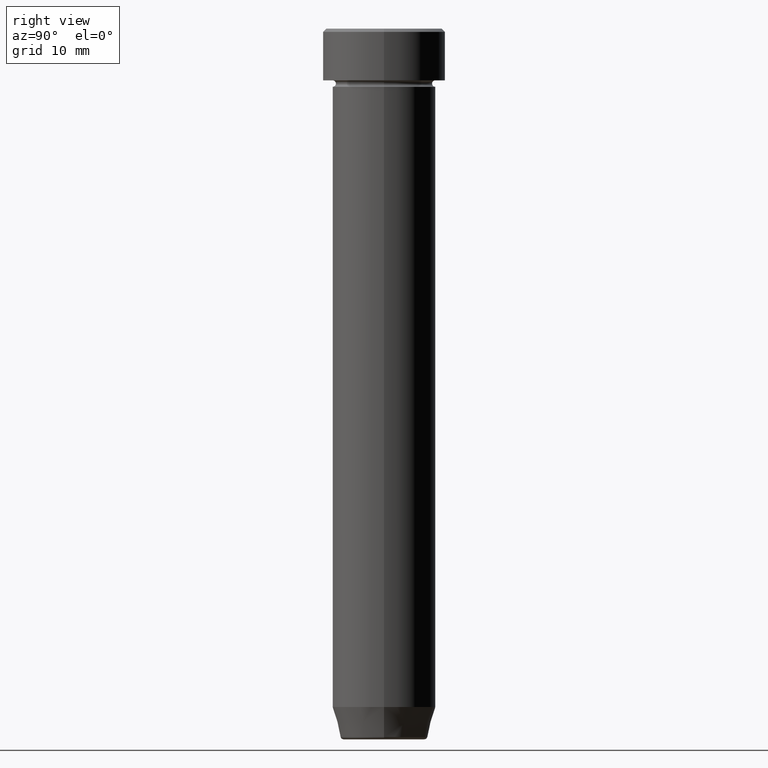
[diagram: clean part render]
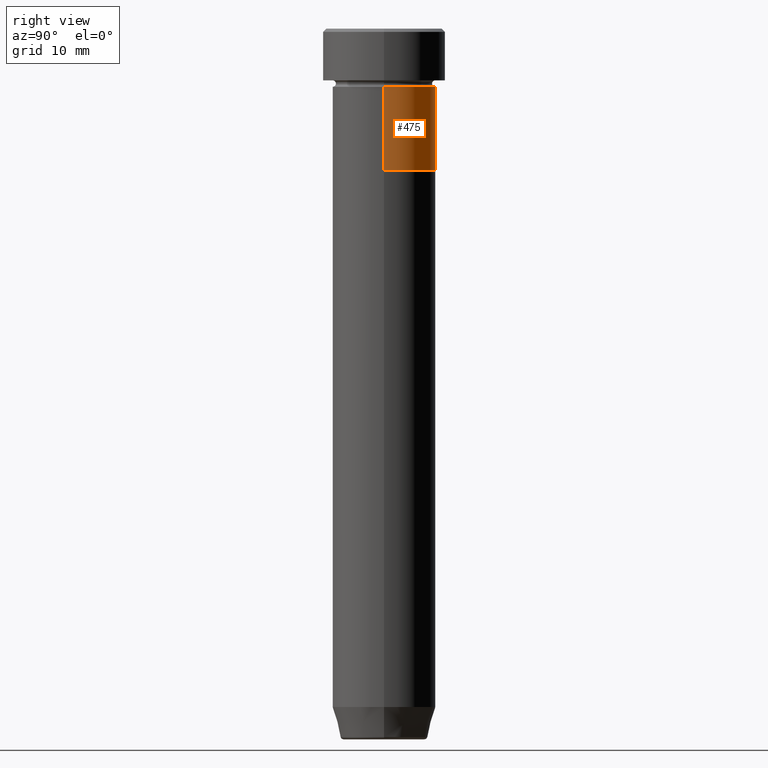
[diagram: same view with one face highlighted and labeled with its STEP entity id]
A machine part, right view. The second image highlights one B-rep face of the part: STEP entity #475.
In plain terms, the highlighted cylindrical surface (partial cylindrical patch) has radius 8 mm, axis along (-0, -0, 1).
Its self-contained STEP definition (entity closure, byte-faithful):
#1 = DIRECTION ( 'NONE',  ( -0.000000000000000000, -0.000000000000000000, 1.000000000000000000 ) ) ;
#11 = FACE_OUTER_BOUND ( 'NONE', #244, .T. ) ;
#13 = DIRECTION ( 'NONE',  ( 1.000000000000000000, 0.000000000000000000, 0.000000000000000000 ) ) ;
#26 = AXIS2_PLACEMENT_3D ( 'NONE', #548, #137, #415 ) ;
#81 = ORIENTED_EDGE ( 'NONE', *, *, #484, .T. ) ;
#89 = CARTESIAN_POINT ( 'NONE',  ( -8.000000000000000000, 9.797174393178825657E-16, -22.00000000000000000 ) ) ;
#131 = EDGE_CURVE ( 'NONE', #173, #558, #537, .T. ) ;
#137 = DIRECTION ( 'NONE',  ( -0.000000000000000000, -0.000000000000000000, 1.000000000000000000 ) ) ;
#173 = VERTEX_POINT ( 'NONE', #589 ) ;
#176 = AXIS2_PLACEMENT_3D ( 'NONE', #461, #1, #511 ) ;
#198 = CARTESIAN_POINT ( 'NONE',  ( 0.000000000000000000, 0.000000000000000000, 0.000000000000000000 ) ) ;
#205 = DIRECTION ( 'NONE',  ( -0.000000000000000000, -0.000000000000000000, 1.000000000000000000 ) ) ;
#213 = LINE ( 'NONE', #386, #467 ) ;
#241 = CIRCLE ( 'NONE', #176, 8.000000000000000000 ) ;
#244 = EDGE_LOOP ( 'NONE', ( #529, #81, #263, #272 ) ) ;
#251 = DIRECTION ( 'NONE',  ( -0.000000000000000000, -0.000000000000000000, 1.000000000000000000 ) ) ;
#263 = ORIENTED_EDGE ( 'NONE', *, *, #273, .F. ) ;
#272 = ORIENTED_EDGE ( 'NONE', *, *, #131, .F. ) ;
#273 = EDGE_CURVE ( 'NONE', #558, #559, #241, .T. ) ;
#324 = EDGE_CURVE ( 'NONE', #173, #400, #378, .T. ) ;
#344 = CARTESIAN_POINT ( 'NONE',  ( 8.000000000000000000, 0.000000000000000000, -9.000000000000001776 ) ) ;
#351 = AXIS2_PLACEMENT_3D ( 'NONE', #198, #205, #13 ) ;
#378 = CIRCLE ( 'NONE', #26, 8.000000000000000000 ) ;
#386 = CARTESIAN_POINT ( 'NONE',  ( -8.000000000000000000, 9.797174393178825657E-16, 0.000000000000000000 ) ) ;
#400 = VERTEX_POINT ( 'NONE', #89 ) ;
#415 = DIRECTION ( 'NONE',  ( 1.000000000000000000, 0.000000000000000000, 0.000000000000000000 ) ) ;
#426 = CYLINDRICAL_SURFACE ( 'NONE', #351, 8.000000000000000000 ) ;
#444 = CARTESIAN_POINT ( 'NONE',  ( 8.000000000000000000, 0.000000000000000000, 0.000000000000000000 ) ) ;
#461 = CARTESIAN_POINT ( 'NONE',  ( 0.000000000000000000, 0.000000000000000000, -9.000000000000001776 ) ) ;
#467 = VECTOR ( 'NONE', #251, 1000.000000000000000 ) ;
#475 = ADVANCED_FACE ( 'NONE', ( #11 ), #426, .T. ) ;
#484 = EDGE_CURVE ( 'NONE', #400, #559, #213, .T. ) ;
#494 = DIRECTION ( 'NONE',  ( -0.000000000000000000, -0.000000000000000000, 1.000000000000000000 ) ) ;
#511 = DIRECTION ( 'NONE',  ( 1.000000000000000000, 0.000000000000000000, 0.000000000000000000 ) ) ;
#518 = VECTOR ( 'NONE', #494, 1000.000000000000000 ) ;
#529 = ORIENTED_EDGE ( 'NONE', *, *, #324, .T. ) ;
#534 = CARTESIAN_POINT ( 'NONE',  ( -8.000000000000000000, 9.797174393178825657E-16, -9.000000000000001776 ) ) ;
#537 = LINE ( 'NONE', #444, #518 ) ;
#548 = CARTESIAN_POINT ( 'NONE',  ( 0.000000000000000000, 0.000000000000000000, -22.00000000000000000 ) ) ;
#558 = VERTEX_POINT ( 'NONE', #344 ) ;
#559 = VERTEX_POINT ( 'NONE', #534 ) ;
#589 = CARTESIAN_POINT ( 'NONE',  ( 8.000000000000000000, 0.000000000000000000, -22.00000000000000000 ) ) ;